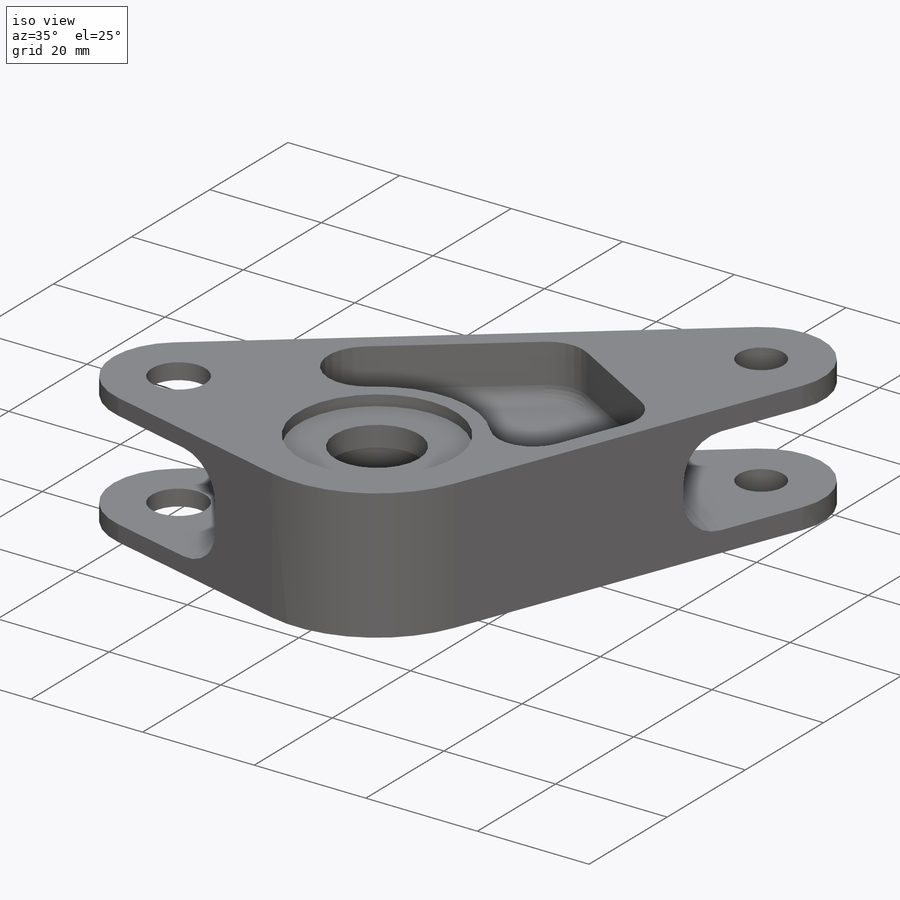
[diagram: iso view]
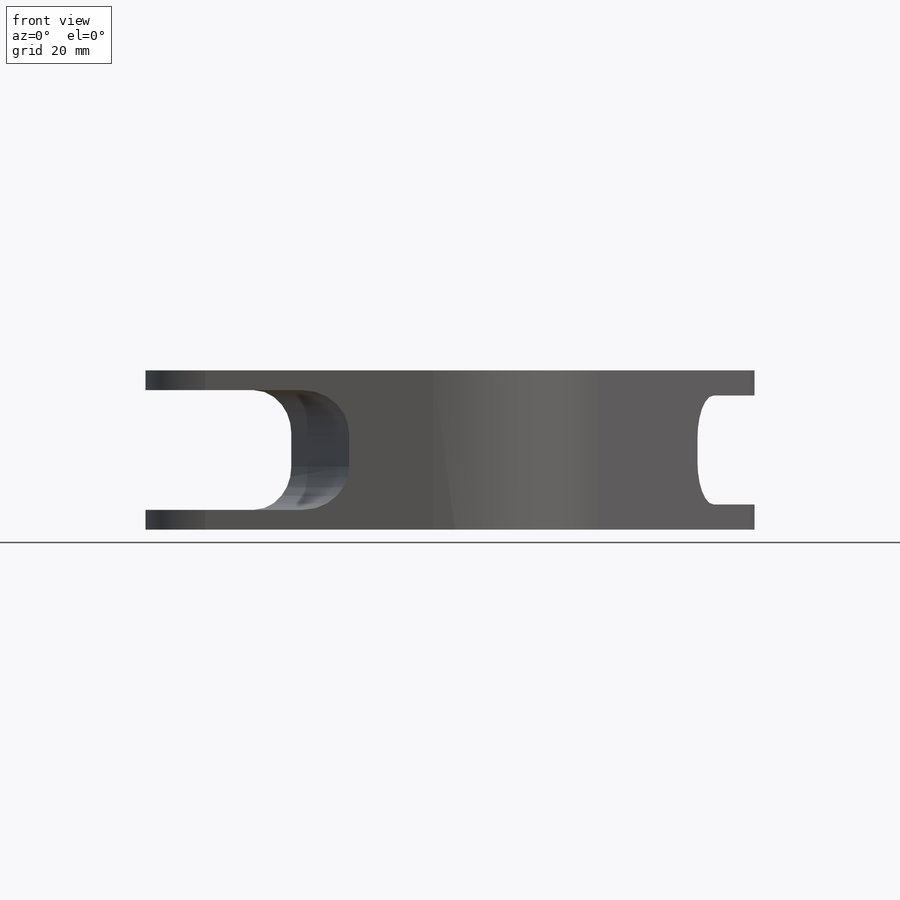
[diagram: front view]
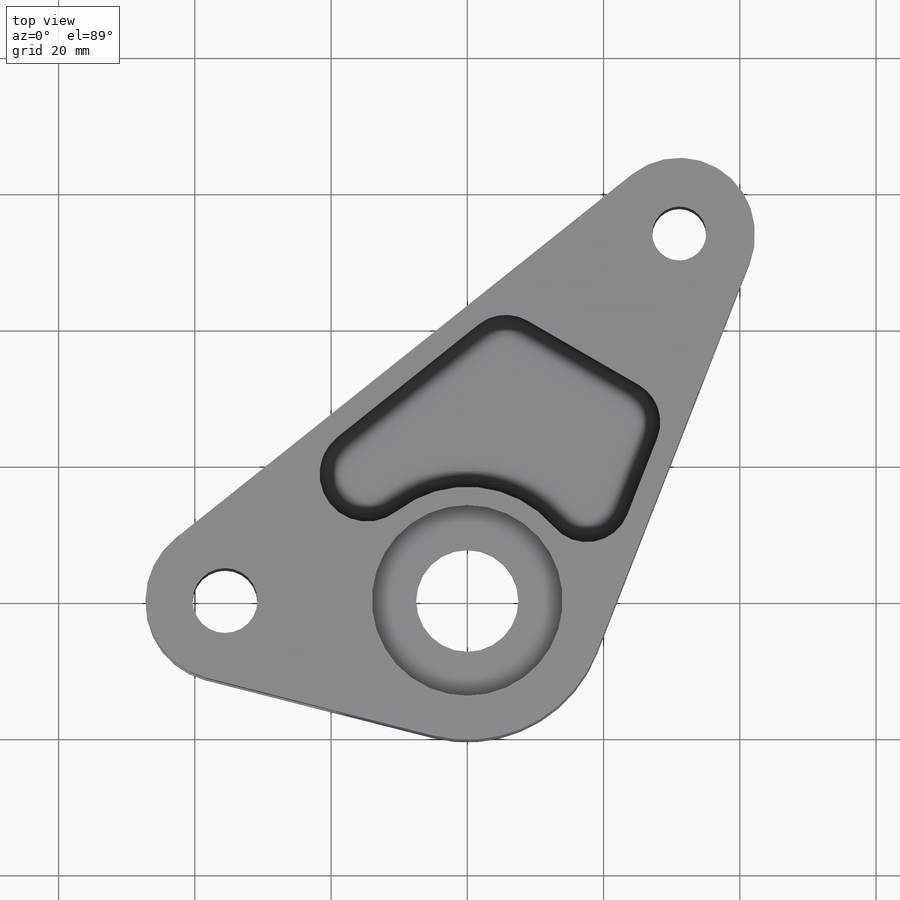
[diagram: top view]
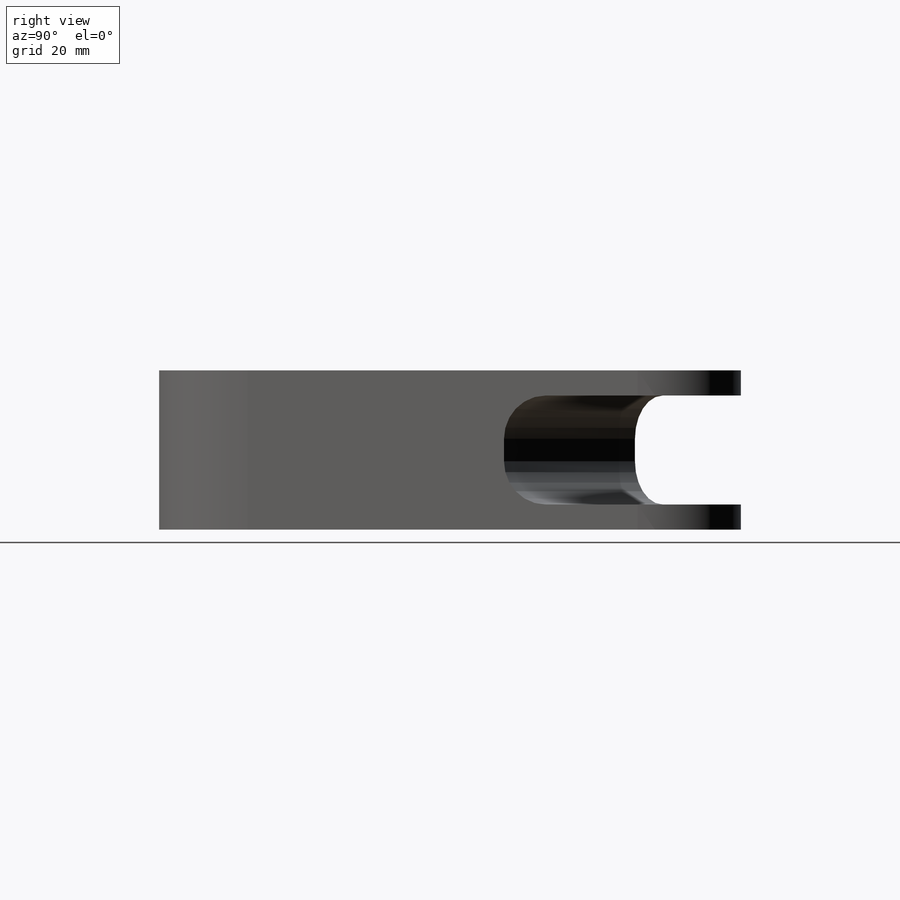
[diagram: right view]
SOLIDWORKS PART (.sldprt)
format: sldprt  version: not decoded by parser v0  size: 469,504 bytes
history: native  units: mm
features: sketch x12, cut_extrude x9, fillet x3, plane x2, material x1, extrude x1 (+11 scaffold rows collapsed)
feature tree (39):
  scaffold x11  (default folders/planes/origin — collapsed)
  material  "6061 Alloy"
  sketch  "Layout"  dims[c1.D1=35.56mm c1.D2=62.23mm c1.D3=50.8mm c2.D3=120.0deg c2.D4=6.35mm c2.D5=6.35mm]
  sketch  "Sketch2"  dims[D1=20.447mm D2=11.684mm D3=11.1125mm]
  extrude  "Boss-Extrude2"  Depth=23.368mm
  sketch  "Sketch3"  dims[D1=24.0mm]
  cut_extrude  "Cut-Extrude1"  Depth=17.78mm
  sketch  "Sketch5"  dims[D1=9.525mm D2=7.9375mm]
  cut_extrude  "Cut-Extrude3"  [1 undecoded]
  sketch  "Sketch4"  dims[D1=15.0mm]
  cut_extrude  "Cut-Extrude2"  [1 undecoded]
  sketch  "Sketch6"  dims[c1.D1=31.75mm c1.D2=38.1mm c2.D1=12.7mm c2.D3=2.54mm c2.D4=2.54mm c2.D5=2.54mm c3.D1=25.4mm c3.D5=2.54mm c3.D6=6.35mm c4.D1=6.35mm c4.D5=6.35mm c4.D7=15.875mm c4.D2=6.35mm c5.D5=6.35mm c5.D6=38.1mm c5.D8=38.1mm c5.D9=6.35mm c5.D2=6.35mm c5.D7=~16.699108mm c6.D9=6.35mm c6.D2=6.35mm c6.D3=3.175mm c6.D4=3.175mm c6.D5=6.35mm c6.D8=6.35mm c6.D1=22.86mm c7.D5=22.225mm c7.D1=27.94mm]
  cut_extrude  "Cut-Extrude4"  Depth=9.525mm
  sketch  "Sketch8"  dims[c1.D1=31.75mm c1.D2=38.1mm c1.D3=2.54mm c1.D4=2.54mm c1.D5=2.54mm c2.D3=2.54mm c2.D6=6.35mm c2.D2=6.35mm c2.D4=38.1mm c3.D2=6.35mm c3.D6=19.05mm c3.D7=6.35mm c4.D2=6.35mm c4.D5=~45.186777mm c4.D3=3.175mm c4.D4=6.35mm c5.D5=3.175mm c5.D1=22.225mm c5.D2=35.56mm]
  cut_extrude  "Cut-Extrude5"  Depth=9.525mm
  sketch  "Sketch10"  dims[D1=28.0mm]
  cut_extrude  "Cut-Extrude6"  Depth=1.905mm
  sketch  "Sketch11"  dims[c1.D1=28.575mm c1.D2=12.7mm c1.D3=~11.851873mm c2.D2=12.7mm]
  plane  "Plane1"
  plane  "Plane2"
  sketch  "Sketch12"  dims[c1.D1=4.7625mm c1.D2=4.7625mm c1.D3=12.7mm c1.D4=38.1mm c2.D1=16.002mm]
  cut_extrude  "Cut-Extrude7"  [1 undecoded]
  sketch  "Sketch15"  dims[c1.D1=4.7625mm c1.D2=4.7625mm c1.D3=25.4mm c2.D1=17.5768mm c2.D2=50.8mm]
  cut_extrude  "Cut-Extrude8"  [1 undecoded]
  fillet  "Fillet2"  Radius=3.175mm
  fillet  "Fillet3"  Radius=6.35mm
  fillet  "Fillet4"  Radius=2.54mm
  sketch  "Sketch16"  dims[D1=34.544mm]
  cut_extrude  "Cut-Extrude9"  Depth=3.048mm
decode coverage: 21 of 25 modeling features carry decoded parameters
note: ~ marks probable driven/reference dimensions
note: 4 parameter values undecoded
summary: no parameter record found for 4 features
note: suppression state not decoded; provenance and decode notes live in map.json
